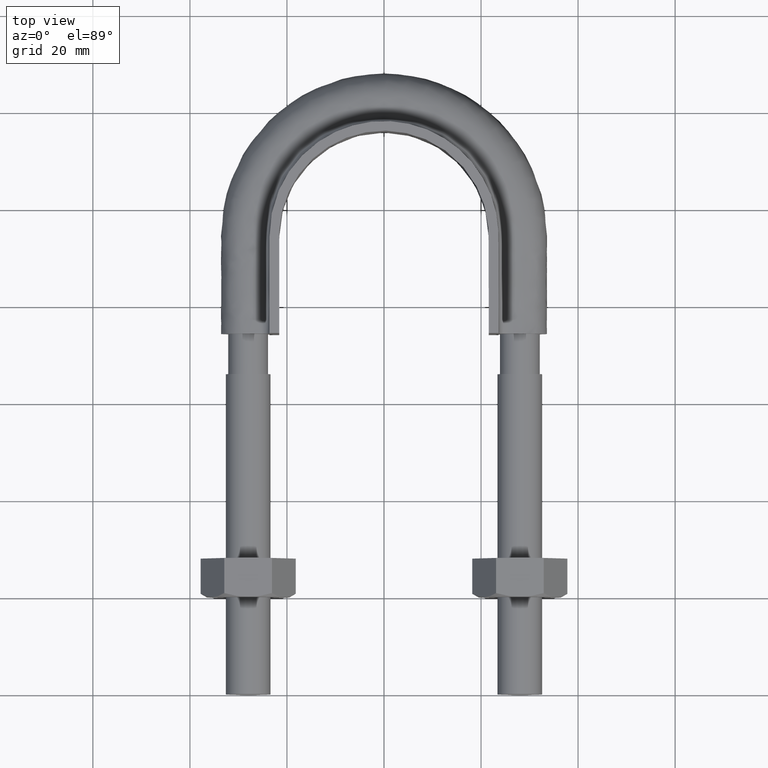
[diagram: clean part render]
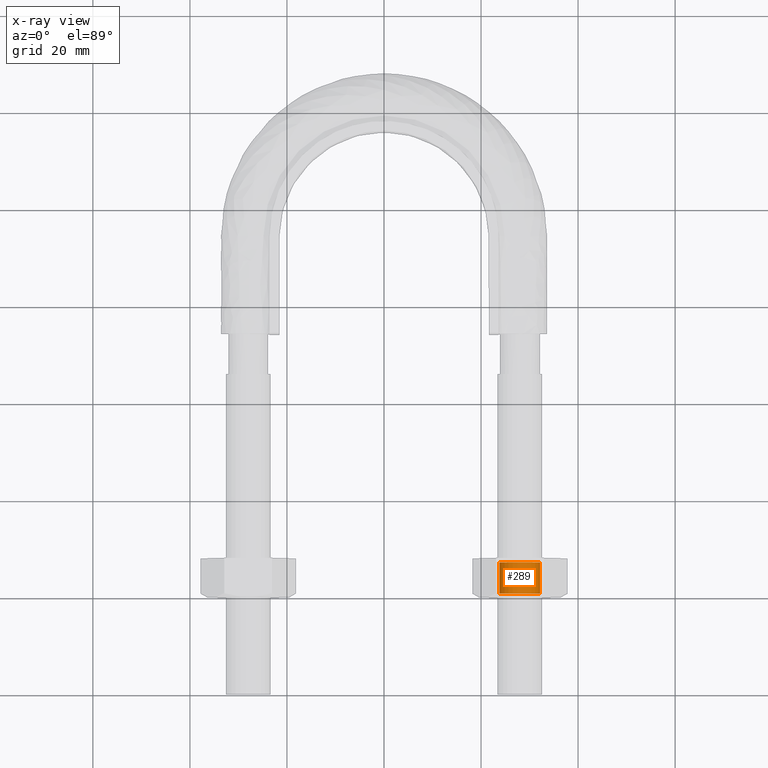
[diagram: x-ray — body ghosted, one internal face saturated and labeled with its STEP entity id]
A machine part, top view, then the same camera in x-ray: the body is ghosted and one INTERNAL B-rep face — a face not visible from any outside direction — is saturated and labeled: STEP entity #289.
In plain terms, the highlighted cylindrical surface (bore or boss wall) has radius 4.188 mm, axis along (0, 1, 0).
Its self-contained STEP definition (entity closure, byte-faithful):
#289 = ADVANCED_FACE( '', ( #455, #456 ), #457, .F. );
#455 = FACE_OUTER_BOUND( '', #1452, .T. );
#456 = FACE_OUTER_BOUND( '', #1453, .T. );
#457 = CYLINDRICAL_SURFACE( '', #1454, 4.18800000000000 );
#1452 = EDGE_LOOP( '', ( #1961 ) );
#1453 = EDGE_LOOP( '', ( #1962 ) );
#1454 = AXIS2_PLACEMENT_3D( '', #1963, #1964, #1965 );
#1961 = ORIENTED_EDGE( '', *, *, #2147, .F. );
#1962 = ORIENTED_EDGE( '', *, *, #2123, .T. );
#1963 = CARTESIAN_POINT( '', ( 28.0000000000000, 27.9999999999984, 1.97964474674123E-015 ) );
#1964 = DIRECTION( '', ( 2.44921270764475E-016, 1.00000000000000, 6.12303176911187E-017 ) );
#1965 = DIRECTION( '', ( -0.866025403784395, 1.81492883563628E-016, 0.500000000000075 ) );
#2123 = EDGE_CURVE( '', #2357, #2357, #2358, .T. );
#2147 = EDGE_CURVE( '', #2395, #2395, #2396, .F. );
#2357 = VERTEX_POINT( '', #2970 );
#2358 = CIRCLE( '', #2971, 4.18800000000000 );
#2395 = VERTEX_POINT( '', #3026 );
#2396 = CIRCLE( '', #3027, 4.18800000000000 );
#2970 = CARTESIAN_POINT( '', ( 23.8120000000000, 27.1879999999986, 1.92992572877605E-015 ) );
#2971 = AXIS2_PLACEMENT_3D( '', #3229, #3230, #3231 );
#3026 = CARTESIAN_POINT( '', ( 32.1880000000000, 20.8120000000000, 1.53952122317757E-015 ) );
#3027 = AXIS2_PLACEMENT_3D( '', #3279, #3280, #3281 );
#3229 = CARTESIAN_POINT( '', ( 28.0000000000000, 27.1879999999986, 1.92992572877605E-015 ) );
#3230 = DIRECTION( '', ( 2.44921270764475E-016, 1.00000000000000, 6.12303176911188E-017 ) );
#3231 = DIRECTION( '', ( -1.00000000000000, 2.44921270764475E-016, 0.000000000000000 ) );
#3279 = CARTESIAN_POINT( '', ( 28.0000000000000, 20.8120000000000, 1.53952122317757E-015 ) );
#3280 = DIRECTION( '', ( -2.44921270764475E-016, -1.00000000000000, -6.12303176911187E-017 ) );
#3281 = DIRECTION( '', ( 1.00000000000000, -2.44921270764475E-016, 0.000000000000000 ) );